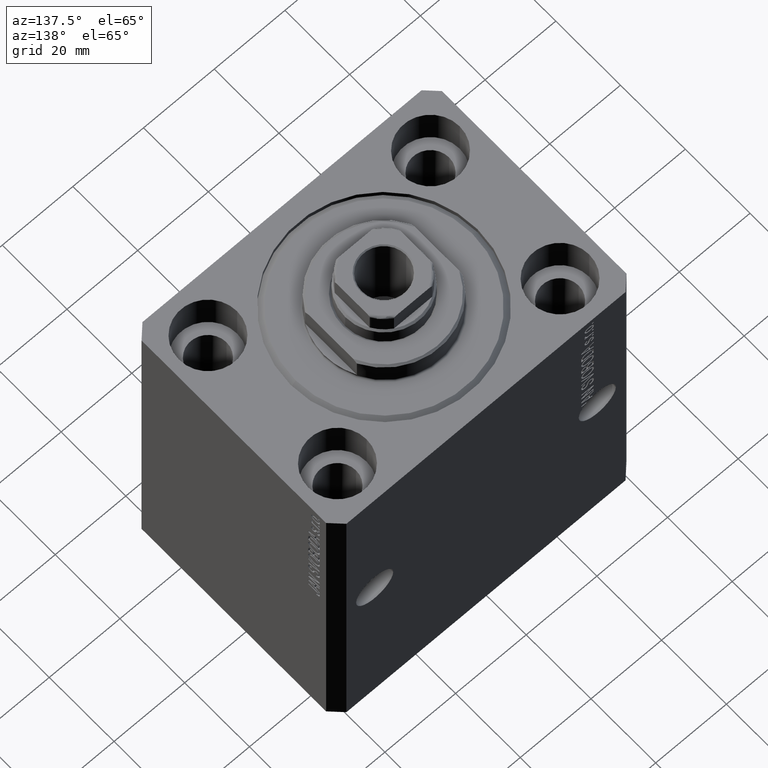
[diagram: clean part render]
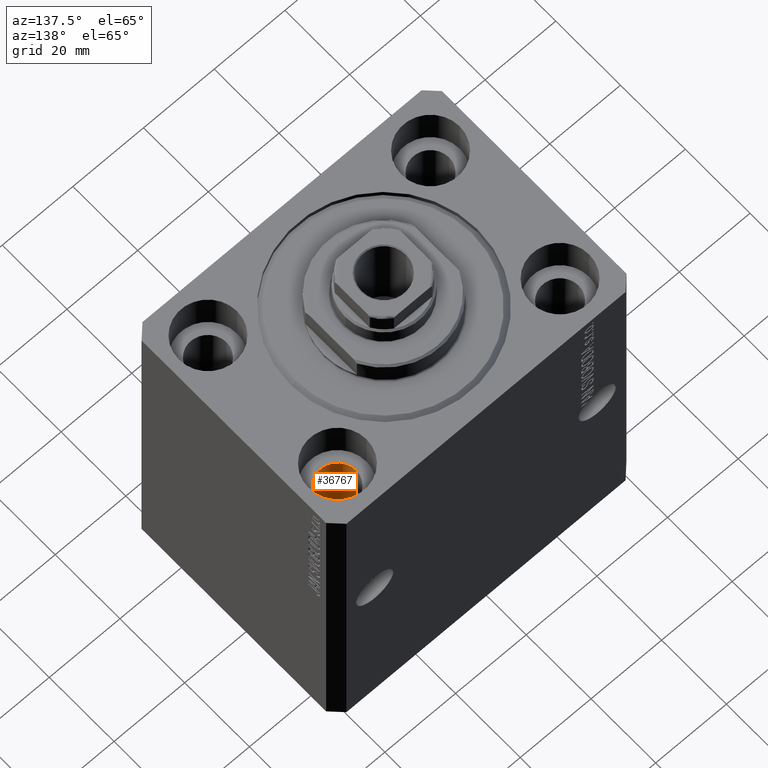
[diagram: same view with one face highlighted and labeled with its STEP entity id]
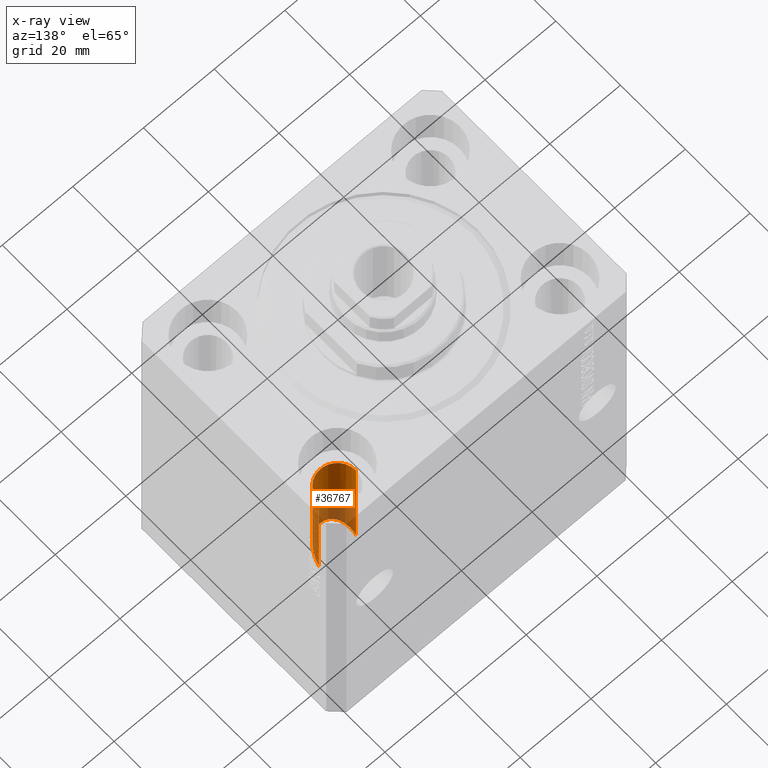
[diagram: x-ray of the same camera — body ghosted, the highlighted face saturated]
A machine part, auxiliary view. The second image highlights one B-rep face of the part: STEP entity #36767.
The next image is the same camera in x-ray: the body ghosted, the highlighted face saturated — about 48% of this face is hidden behind the body in this view.
In plain terms, the highlighted cylindrical surface (edge-blend (fillet) strip) has radius 5.25 mm, axis along (0, 0, 1).
Its self-contained STEP definition (entity closure, byte-faithful):
#1389 = EDGE_CURVE ( 'NONE', #7968, #25198, #16108, .T. ) ;
#1611 = CARTESIAN_POINT ( 'NONE',  ( 31.50000000000000000, 20.00000000000001066, -11.00000000000000000 ) ) ;
#1938 = CARTESIAN_POINT ( 'NONE',  ( 26.25000000000001776, 9.500000000000023093, -32.50000000000000711 ) ) ;
#3160 = LINE ( 'NONE', #26973, #4810 ) ;
#4628 = EDGE_CURVE ( 'NONE', #20001, #8197, #44494, .T. ) ;
#4810 = VECTOR ( 'NONE', #27190, 1000.000000000000000 ) ;
#5294 = ORIENTED_EDGE ( 'NONE', *, *, #10205, .F. ) ;
#6789 = CARTESIAN_POINT ( 'NONE',  ( 36.75000000000000711, 20.00000000000001066, -43.00000000000000000 ) ) ;
#6803 = DIRECTION ( 'NONE',  ( 1.000000000000000000, 0.000000000000000000, 0.000000000000000000 ) ) ;
#7261 = CARTESIAN_POINT ( 'NONE',  ( 31.50000000000000000, 20.00000000000001066, -93.00000000000000000 ) ) ;
#7878 = EDGE_CURVE ( 'NONE', #25198, #20001, #19257, .T. ) ;
#7968 = VERTEX_POINT ( 'NONE', #6789 ) ;
#7978 = DIRECTION ( 'NONE',  ( 1.000000000000000000, 0.000000000000000000, 0.000000000000000000 ) ) ;
#8197 = VERTEX_POINT ( 'NONE', #8681 ) ;
#8681 = CARTESIAN_POINT ( 'NONE',  ( 36.75000000000000000, 20.00000000000001066, -11.00000000000000000 ) ) ;
#10205 = EDGE_CURVE ( 'NONE', #7968, #8197, #3160, .T. ) ;
#12918 = CARTESIAN_POINT ( 'NONE',  ( 26.25000000000000355, 20.00000000000001066, -93.00000000000000000 ) ) ;
#14425 = ORIENTED_EDGE ( 'NONE', *, *, #1389, .T. ) ;
#15213 = AXIS2_PLACEMENT_3D ( 'NONE', #7261, #31295, #6803 ) ;
#16108 =( BOUNDED_CURVE ( )  B_SPLINE_CURVE ( 3, ( #42529, #39568, #1938, #36408 ),
 .UNSPECIFIED., .F., .T. ) 
 B_SPLINE_CURVE_WITH_KNOTS ( ( 4, 4 ),
 ( 4.712388980384689674, 7.853981633974482790 ),
 .UNSPECIFIED. ) 
 CURVE ( )  GEOMETRIC_REPRESENTATION_ITEM ( )  RATIONAL_B_SPLINE_CURVE ( ( 1.000000000000000000, 0.3333333333333333703, 0.3333333333333333703, 1.000000000000000000 ) ) 
 REPRESENTATION_ITEM ( '' )  );
#16233 = ORIENTED_EDGE ( 'NONE', *, *, #7878, .T. ) ;
#19257 = LINE ( 'NONE', #12918, #31551 ) ;
#20001 = VERTEX_POINT ( 'NONE', #24486 ) ;
#24486 = CARTESIAN_POINT ( 'NONE',  ( 26.25000000000000355, 20.00000000000001066, -11.00000000000000000 ) ) ;
#25198 = VERTEX_POINT ( 'NONE', #40104 ) ;
#25636 = DIRECTION ( 'NONE',  ( 0.000000000000000000, 0.000000000000000000, 1.000000000000000000 ) ) ;
#26755 = DIRECTION ( 'NONE',  ( -0.000000000000000000, -0.000000000000000000, 1.000000000000000000 ) ) ;
#26973 = CARTESIAN_POINT ( 'NONE',  ( 36.75000000000000000, 20.00000000000001066, -93.00000000000000000 ) ) ;
#27190 = DIRECTION ( 'NONE',  ( -0.000000000000000000, -0.000000000000000000, 1.000000000000000000 ) ) ;
#27490 = EDGE_LOOP ( 'NONE', ( #14425, #16233, #33215, #5294 ) ) ;
#28328 = CYLINDRICAL_SURFACE ( 'NONE', #15213, 5.249999999999997335 ) ;
#31295 = DIRECTION ( 'NONE',  ( -0.000000000000000000, -0.000000000000000000, 1.000000000000000000 ) ) ;
#31551 = VECTOR ( 'NONE', #26755, 1000.000000000000000 ) ;
#32908 = AXIS2_PLACEMENT_3D ( 'NONE', #1611, #25636, #7978 ) ;
#33215 = ORIENTED_EDGE ( 'NONE', *, *, #4628, .T. ) ;
#34251 = FACE_OUTER_BOUND ( 'NONE', #27490, .T. ) ;
#36408 = CARTESIAN_POINT ( 'NONE',  ( 26.25000000000001066, 20.00000000000001066, -43.00000000000000000 ) ) ;
#36767 = ADVANCED_FACE ( 'NONE', ( #34251 ), #28328, .F. ) ;
#39568 = CARTESIAN_POINT ( 'NONE',  ( 36.75000000000000000, 9.500000000000023093, -32.50000000000000711 ) ) ;
#40104 = CARTESIAN_POINT ( 'NONE',  ( 26.25000000000001066, 20.00000000000001066, -43.00000000000000000 ) ) ;
#42529 = CARTESIAN_POINT ( 'NONE',  ( 36.75000000000000711, 20.00000000000001066, -43.00000000000000000 ) ) ;
#44494 = CIRCLE ( 'NONE', #32908, 5.249999999999997335 ) ;